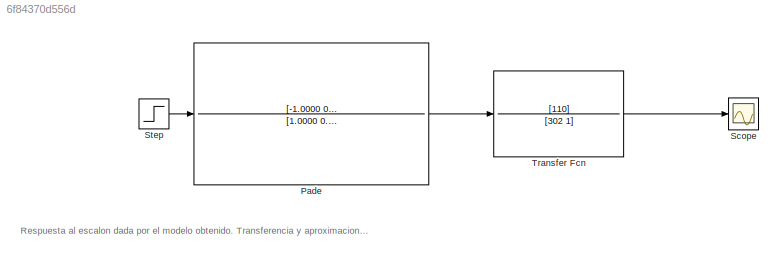
MODEL slx_6f84370d556d
KIND model
CONFIG AbsTol = auto
CONFIG EnableMultiTasking = off
CONFIG FixedStep = auto
CONFIG MaxStep = auto
CONFIG MinStep = auto
CONFIG RelTol = 1e-3
CONFIG SampleTimeConstraint = Unconstrained
CONFIG Solver = VariableStepAuto
CONFIG SolverName = VariableStepAuto
CONFIG StartTime = 0.0
CONFIG StopTime = 1500
BLOCK [TransferFcn] Pade
  Denominator = [1.0000    0.5000    0.1042    0.0087]
  Numerator = [-1.0000    0.5000    -0.1042    0.0087]
BLOCK [Scope] Scope
  NumInputPorts = 1
  Ports = [1]
  ScopeSpecificationString = Simulink.scopes.TimeScopeBlockCfg('CurrentConfiguration', extmgr.ConfigurationSet(extmgr.Configuration('Core','General UI',true,'FigureColor',[1 1 1]),extmgr.Configuration('Core','Source UI',true),extmgr.Configuration('Sources','WiredSimulink',true,'DataLogging',true,'DataLoggingVariableName','Scope_Simu_Escalon1','DataLoggingSaveFormat','StructureWithTime'),extmgr.Configuration('Visuals','Time Do...<+1643ch>
BLOCK [Step] Step
  After = 0.5
  SampleTime = 0
  Time = 0
BLOCK [TransferFcn] Transfer Fcn
  Denominator = [302 1]
  Numerator = [110]
ANNOTATION (root): Respuesta al escalon dada por el modelo obtenido. Transferencia y aproximacion de Pade del retardo temporal.
LINE Pade:1 -> Transfer Fcn:1
LINE Step:1 -> Pade:1
LINE Transfer Fcn:1 -> Scope:1
